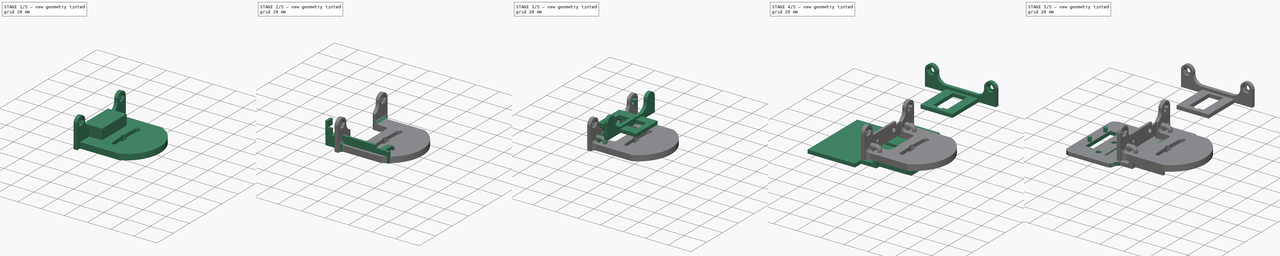
[diagram: build sequence overview — one tinted view per stage of 5, left to right]
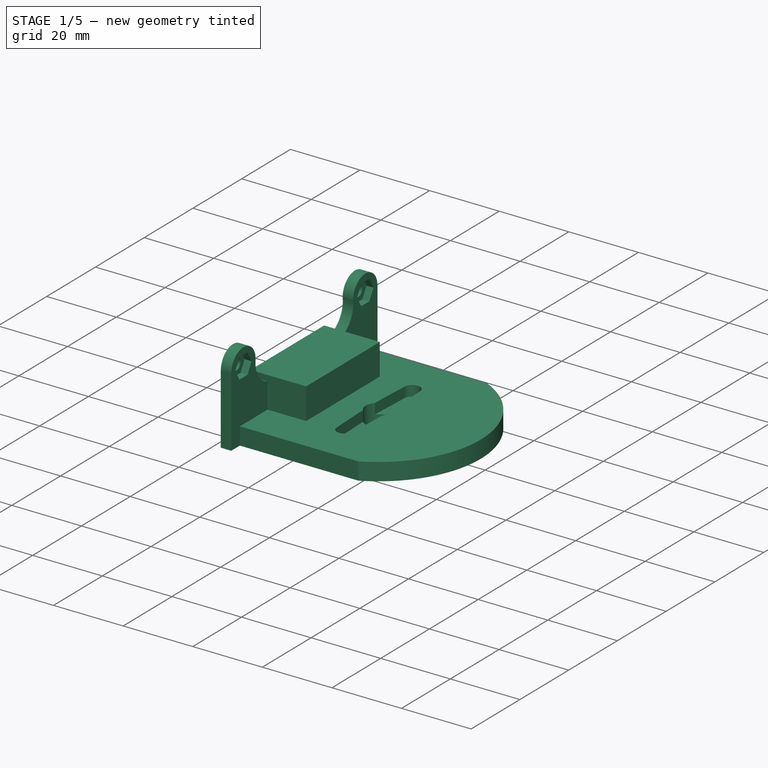
[diagram: stage 1 of 5 — iso view after this stage's code; geometry added in this stage tinted green]
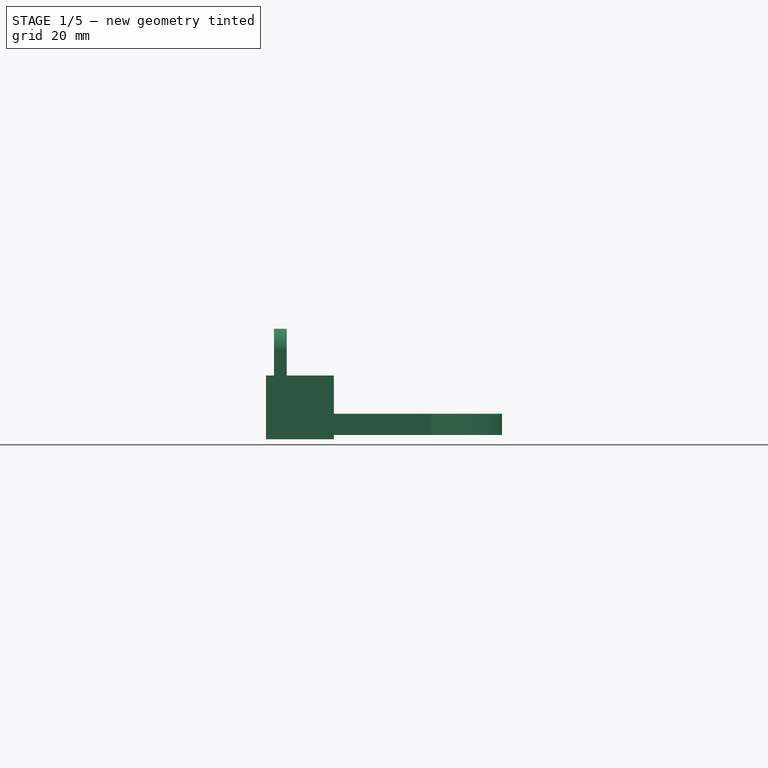
[diagram: stage 1 of 5 — front view after this stage's code; geometry added in this stage tinted green]
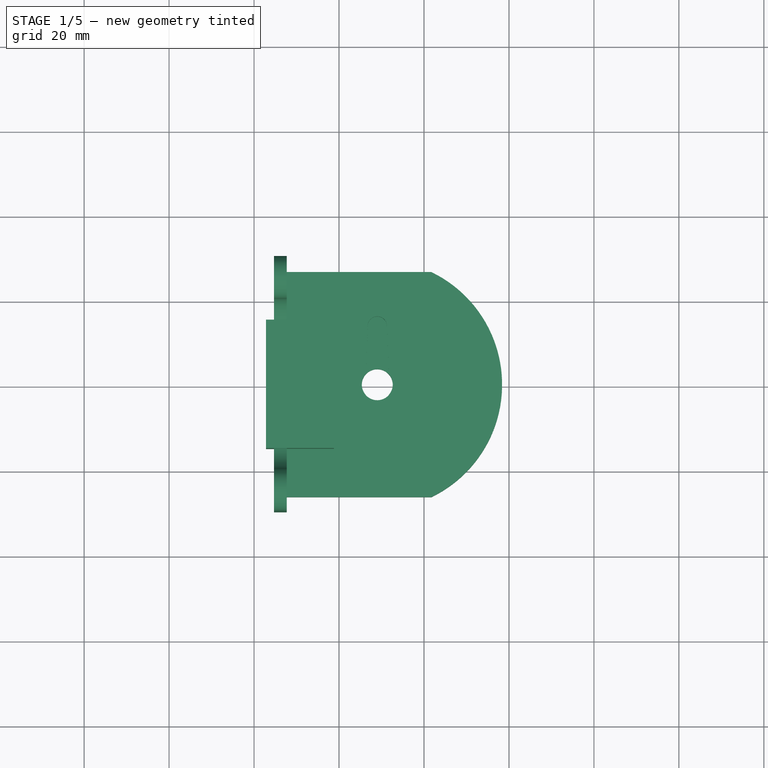
[diagram: stage 1 of 5 — top view after this stage's code; geometry added in this stage tinted green]
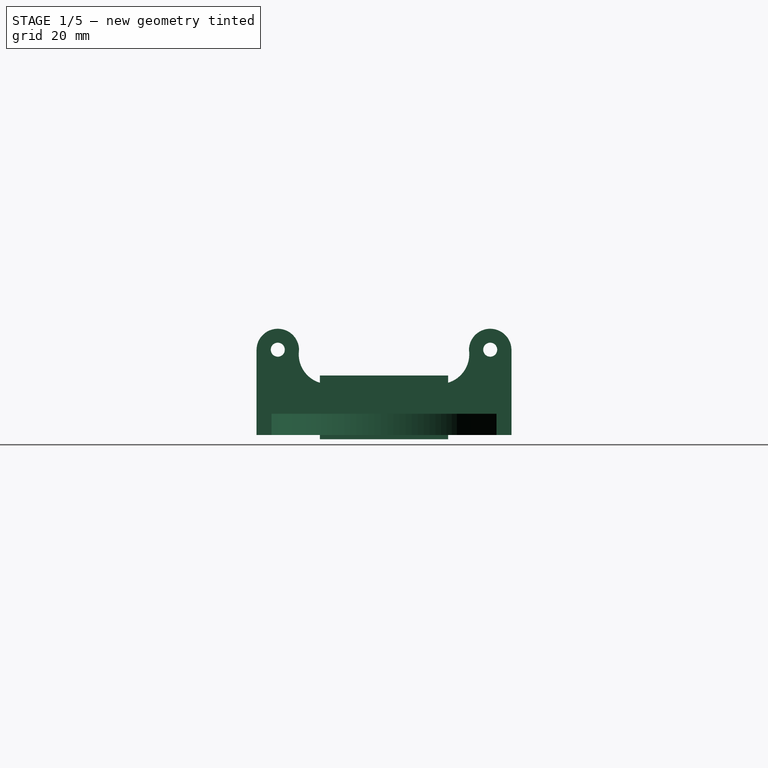
[diagram: stage 1 of 5 — right view after this stage's code; geometry added in this stage tinted green]
FCSTD DOCUMENT  (FreeCAD 0.15R4671 (Git))
Label: piezasExtra
License: CreativeCommons Attribution-ShareAlike
LicenseURL: http://creativecommons.org/licenses/by-sa/4.0/
objects: Part::Box×24, Part::Cut×23, Part::MultiFuse×20, Part::Fillet×18, Part::Cylinder×11, PartDesign::Pad×6, Part::Feature×4, Sketcher::SketchObject×4, App::DocumentObjectGroup×2
note: 116 computed .brp shape members not serialized (recipe doc carries the construction recipe); baked Part::Feature solids carry a one-line shape summary decoded from their .brp

FEATURE [Part::Cut] Cut013  label="AlojaServoV2"
  Placement = pos=(9,0.5,2.05) rot=(0.57735,-0.57735,-0.57735;2.0944rad)
FEATURE [Part::Box] Box019  label="paraPorta"
  Height = 12
  Length = 3
  Placement = pos=(-15.3,-29.5,2.05) rot=(0,0,1;0rad)
  Width = 60
FEATURE [Part::Box] Box020  label="paraBase"
  Height = 5
  Length = 10.1
  Placement = pos=(-12.3,-25.9783,2.05) rot=(0,0,1;0rad)
  Width = 52.9566
FEATURE [Part::Box] Box021  label="paraCorte"
  Height = 20
  Length = 12
  Placement = pos=(-14.2,-29.5,-5.95) rot=(0,0,1;0rad)
  Width = 60
FEATURE [Part::Box] Box022  label="Cubo019"
  Height = 15
  Length = 16
  Placement = pos=(-17.2,-14.607,1.05) rot=(0,0,1;0rad)
  Width = 30.214
FEATURE [Part::Cut] Cut020
  Base = -> Cut013
  Tool = -> Box021
FEATURE [Part::Cylinder] Cylinder009
  Angle = 360
  Height = 15
  Placement = pos=(0,0,0) rot=(-1,0,0;1.5708rad)
  Radius = 1.65
FEATURE [Sketcher::SketchObject] Sketch002
  Placement = pos=(0,0,0) rot=(1,0,0;1.5708rad)
  sketch-geometry (6):
    g0: LineSegment StartX=-3.34863 StartY=0 StartZ=0 EndX=-1.67432 EndY=2.9 EndZ=0
    g1: LineSegment StartX=-1.67432 StartY=2.9 StartZ=0 EndX=1.67432 EndY=2.9 EndZ=0
    g2: LineSegment StartX=1.67432 StartY=2.9 StartZ=0 EndX=3.34863 EndY=0 EndZ=0
    g3: LineSegment StartX=3.34863 StartY=0 StartZ=0 EndX=1.67432 EndY=-2.9 EndZ=0
    g4: LineSegment StartX=1.67432 StartY=-2.9 StartZ=0 EndX=-1.67432 EndY=-2.9 EndZ=0
    g5: LineSegment StartX=-1.67432 StartY=-2.9 StartZ=0 EndX=-3.34863 EndY=0 EndZ=0
  constraints (18):
    c: PointOnObject(g0,g-1)
    c: Coincident(g0,g1)
    c: Horizontal(g1)
    c: Coincident(g1,g2)
    c: Coincident(g2,g3)
    c: Coincident(g3,g4)
    c: Horizontal(g4)
    c: Coincident(g4,g5)
    c: Coincident(g5,g0)
    c: PointOnObject(g2,g-1)
    c: Equal(g1,g0)
    c: Equal(g0,g5)
    c: Equal(g5,g4)
    c: Equal(g4,g3)
    c: Equal(g3,g2)
    c: Angle(g0,g1) = 2.0944
    c: Symmetric(g0,g2,g-2)
    c: DistanceY(g1,g3) = -5.8
FEATURE [PartDesign::Pad] Pad005
  Length = 2.5
  Length2 = 100
  Placement = pos=(0,0,0) rot=(1,0,0;1.5708rad)
  Sketch = -> Sketch002
  Type = 0
FEATURE [Part::Cylinder] Cylinder010
  Angle = 360
  Height = 15
  Placement = pos=(0,0,0) rot=(-1,0,0;1.5708rad)
  Radius = 1.65
FEATURE [Part::MultiFuse] Fusion014  label="TuercaTal020"
  Placement = pos=(1,25,28) rot=(0,0,1;1.5708rad)
  Shapes = -> [Pad005,Cylinder010]
FEATURE [Sketcher::SketchObject] Sketch003
  Placement = pos=(0,0,0) rot=(0.57735,0.57735,0.57735;2.0944rad)
  sketch-geometry (9):
    g0: LineSegment StartX=-30 StartY=14.9253 StartZ=0 EndX=30 EndY=14.9253 EndZ=0
    g1: LineSegment StartX=-30 StartY=27.9253 StartZ=0 EndX=-30 EndY=14.9253 EndZ=0
    g2: LineSegment StartX=30 StartY=27.9253 StartZ=0 EndX=30 EndY=14.9253 EndZ=0
    g3: LineSegment StartX=-13.0351 StartY=19.9253 StartZ=0 EndX=13.0351 EndY=19.9253 EndZ=0
    g4: LineSegment [constr] StartX=-30.3452 StartY=27.9253 StartZ=0 EndX=33.8384 EndY=27.9253 EndZ=0
    g5: ArcOfCircle CenterX=-13.0718 CenterY=26.9252 CenterZ=0 NormalX=0 NormalY=0 NormalZ=1 Radius=7 StartAngle=2.99823 EndAngle=4.71763
    g6: ArcOfCircle CenterX=13.0718 CenterY=26.9252 CenterZ=0 NormalX=0 NormalY=0 NormalZ=1 Radius=7 StartAngle=4.70714 EndAngle=6.42655
    g7: ArcOfCircle CenterX=-25 CenterY=27.9253 CenterZ=0 NormalX=0 NormalY=0 NormalZ=1 Radius=5 StartAngle=0 EndAngle=3.14159
    g8: ArcOfCircle CenterX=25 CenterY=27.9253 CenterZ=0 NormalX=0 NormalY=0 NormalZ=1 Radius=5 StartAngle=0 EndAngle=3.14159
  constraints (27):
    c: Vertical(g1)
    c: Coincident(g0,g1)
    c: Horizontal(g0)
    c: Vertical(g2)
    c: Coincident(g2,g0)
    c: Horizontal(g3)
    c: Symmetric(g5,g6,g-2)
    c: Equal(g5,g6)
    c: Symmetric(g0,g0,g-2)
    c: DistanceX(g0) = 60
    c: Coincident(g3,g5)
    c: Coincident(g3,g6)
    c: Coincident(g7,g5)
    c: Coincident(g7,g1)
    c: PointOnObject(g1,g4)
    c: PointOnObject(g7,g4)
    c: Radius(g7) = 5
    c: Equal(g7,g8)
    c: PointOnObject(g8,g4)
    c: Coincident(g8,g2)
    c: PointOnObject(g2,g4)
    c: Coincident(g6,g8)
    c: PointOnObject(g6,g4)
    c: Horizontal(g4)
    c: DistanceY(g1) = -13
    c: DistanceY(g3,g0) = -5
    c: Radius(g5) = 7
FEATURE [PartDesign::Pad] Pad006
  Length = 3
  Length2 = 100
  Placement = pos=(0,0,0) rot=(0.57735,0.57735,0.57735;2.0944rad)
  Sketch = -> Sketch003
  Type = 0
FEATURE [PartDesign::Pad] Pad007
  Length = 2.5
  Length2 = 100
  Placement = pos=(0,0,0) rot=(1,0,0;1.5708rad)
  Sketch = -> Sketch002
  Type = 0
FEATURE [Part::MultiFuse] Fusion015  label="TuercaTal021"
  Placement = pos=(1,-25,28) rot=(0,0,1;1.5708rad)
  Shapes = -> [Pad007,Cylinder009]
FEATURE [Part::Cut] Cut021
  Base = -> Pad006
  Tool = -> Fusion014
FEATURE [Part::Cut] Cut022  label="preAloBat"
  Base = -> Cut021
  Placement = pos=(-15.3,0.5,-5.8753) rot=(0,0,1;0rad)
  Tool = -> Fusion015
FEATURE [Part::MultiFuse] Fusion016
  Shapes = -> [Box020,Box019]
FEATURE [Part::MultiFuse] Fusion017
  Shapes = -> [Cut022,Fusion016]
FEATURE [Part::Box] Box023  label="Cubo020"
  Height = 5
  Length = 18
  Placement = pos=(14.2668,-6.9783,2.05) rot=(0,0,1;0rad)
  Width = 21
FEATURE [Part::MultiFuse] Fusion018
  Shapes = -> [Box023,Cut020]
FEATURE [Part::MultiFuse] Fusion019
  Shapes = -> [Fusion017,Fusion018]
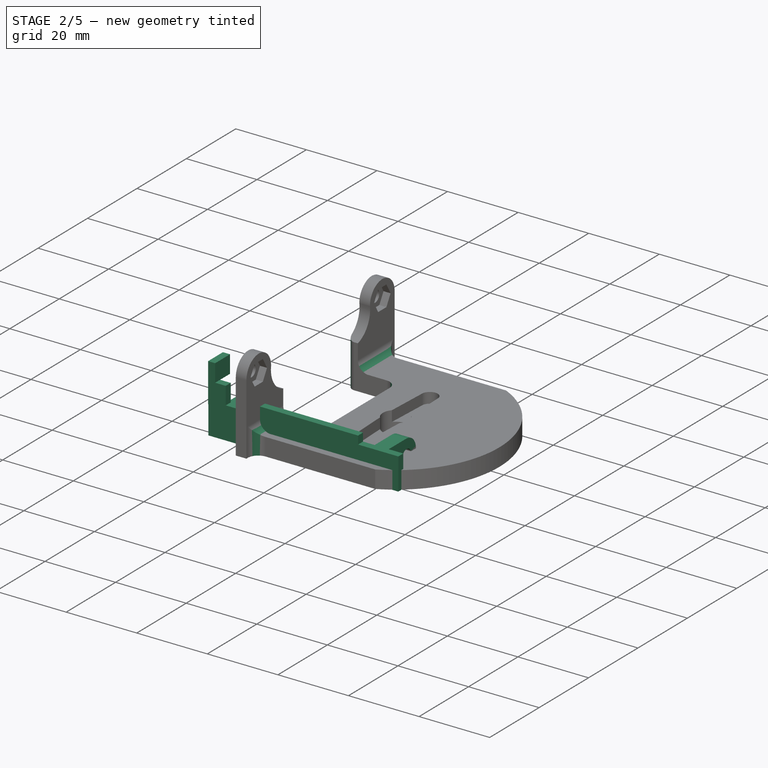
[diagram: stage 2 of 5 — iso view after this stage's code; geometry added in this stage tinted green]
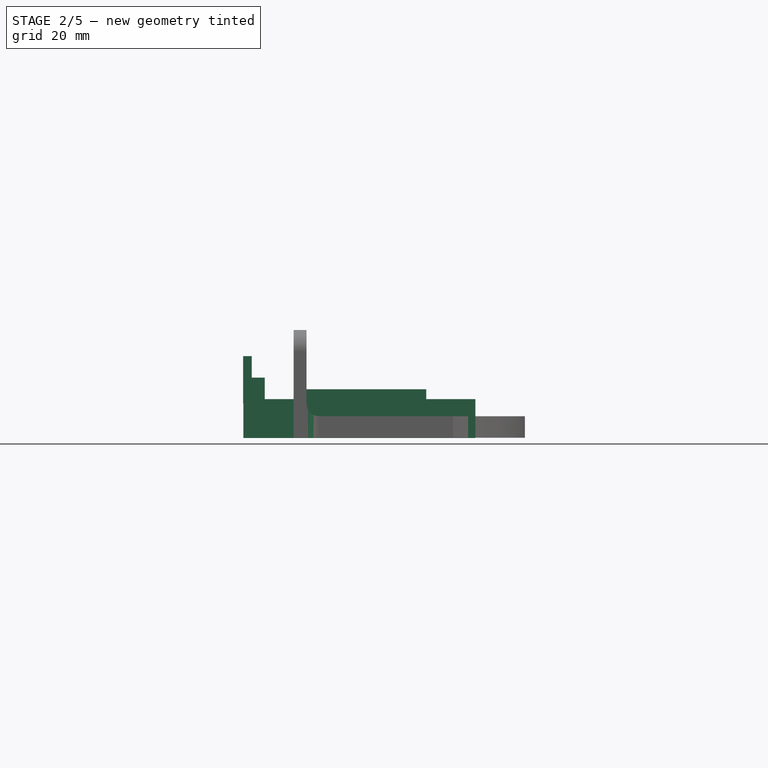
[diagram: stage 2 of 5 — front view after this stage's code; geometry added in this stage tinted green]
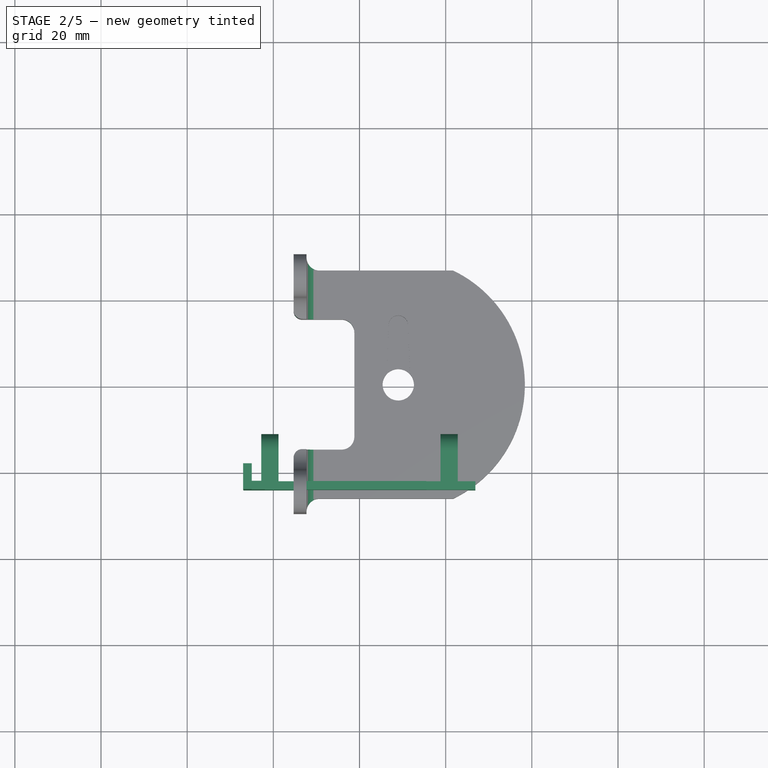
[diagram: stage 2 of 5 — top view after this stage's code; geometry added in this stage tinted green]
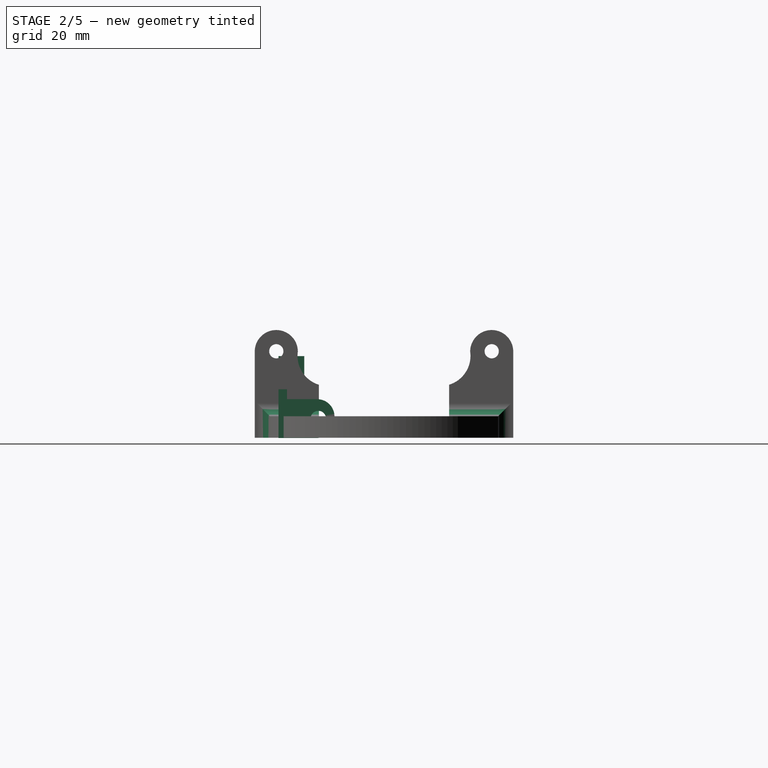
[diagram: stage 2 of 5 — right view after this stage's code; geometry added in this stage tinted green]
FEATURE [Part::Box] Box012  label="Cubo012"
  Height = 9
  Length = 53.848
  Placement = pos=(-26.94,-24,2) rot=(0,0,1;0rad)
  Width = 2
FEATURE [Part::Box] Box013  label="Cubo013"
  Height = 9
  Length = 4
  Placement = pos=(18.7926,-24,1.5) rot=(0,0,1;0rad)
  Width = 13
FEATURE [Part::Box] Box014  label="Cubo014"
  Height = 9
  Length = 4
  Placement = pos=(-22.7927,-24,1.5) rot=(0,0,1;0rad)
  Width = 13
FEATURE [Part::Fillet] Fillet005
  Base = -> Box013
  Edges = 2 edges r=4: [Edge11,Edge12]
  Placement = pos=(0,0,0.5) rot=(0,0,1;0rad)
FEATURE [Part::Fillet] Fillet006
  Base = -> Box014
  Edges = 2 edges r=4: [Edge11,Edge12]
  Placement = pos=(0,0,0.5) rot=(0,0,1;0rad)
FEATURE [Part::MultiFuse] Fusion008  label="TuercaTal018"
  Placement = pos=(24.3,-14.75,6.5) rot=(0,0,1;1.5708rad)
FEATURE [Part::MultiFuse] Fusion009  label="TuercaTal019"
  Placement = pos=(-17.4,-14.75,6.5) rot=(0,0,1;1.5708rad)
FEATURE [Part::Cut] Cut014
  Base = -> Fillet005
  Tool = -> Fusion008
FEATURE [Part::Cut] Cut015
  Base = -> Fillet006
  Tool = -> Fusion009
FEATURE [Part::Box] Box015  label="Cubo015"
  Height = 11
  Length = 2
  Placement = pos=(-27,-24,10) rot=(0,0,1;0rad)
  Width = 6
FEATURE [Part::Box] Box016  label="Cubo016"
  Height = 5
  Length = 5
  Placement = pos=(-27,-24,11) rot=(0,0,1;0rad)
  Width = 2
FEATURE [Part::Box] Box017  label="Cubo017"
  Height = 7
  Length = 6
  Placement = pos=(-27,-22,9) rot=(0,0,1;0rad)
  Width = 6
FEATURE [Part::Cut] Cut016
  Base = -> Box015
  Tool = -> Box017
FEATURE [Part::MultiFuse] Fusion010
  Shapes = -> [Cut016,Box016]
FEATURE [Part::MultiFuse] Fusion011
  Shapes = -> [Box012,Fusion010]
FEATURE [Part::Box] Box018  label="Cubo018"
  Height = 3
  Length = 28
  Placement = pos=(-12.5,-24,10.3) rot=(0,0,1;0rad)
  Width = 2
FEATURE [Part::Cut] Cut023
  Base = -> Fusion019
  Tool = -> Box022
FEATURE [Part::Fillet] Fillet014
  Base = -> Cut023
  Edges = 2 edges r=3: [Edge6,Edge74]
FEATURE [Part::Fillet] Fillet015
  Base = -> Fillet014
  Edges = 2 edges r=3: [Edge6,Edge49]
FEATURE [Part::Fillet] Fillet016
  Base = -> Fillet015
  Edges = 2 edges r=3: [Edge20,Edge78]
FEATURE [Part::Fillet] Fillet017
  Base = -> Fillet016
  Edges = 2 edges r=2: [Edge6,Edge76]
FEATURE [App::DocumentObjectGroup] Grupo001  label="GR_portaUltrasonidosBAT"
  Group = -> [Fusion007,Fusion013,Fillet017]
FEATURE [Part::Feature] Fillet018  label="csForBat"
  Placement = pos=(-63,-36,-25) rot=(0,0,1;0rad)
  shape: bbox 53.68 x 60 x 25 mm, 53 faces (baked)
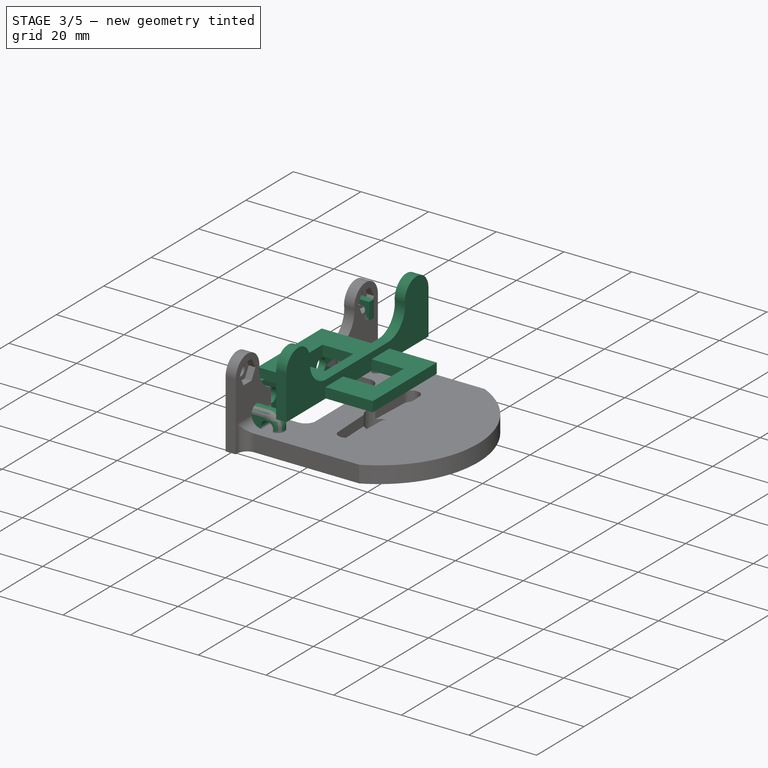
[diagram: stage 3 of 5 — iso view after this stage's code; geometry added in this stage tinted green]
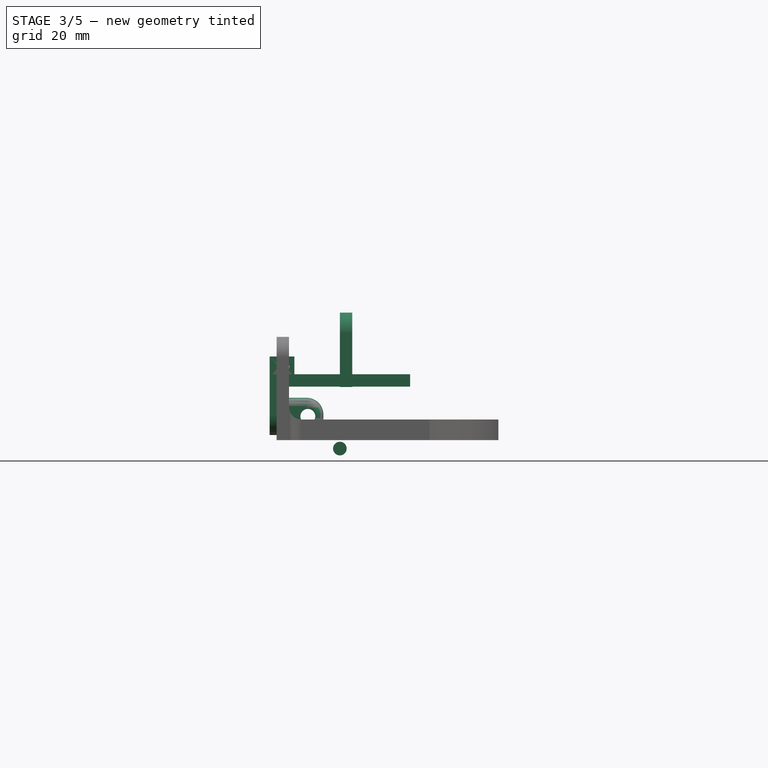
[diagram: stage 3 of 5 — front view after this stage's code; geometry added in this stage tinted green]
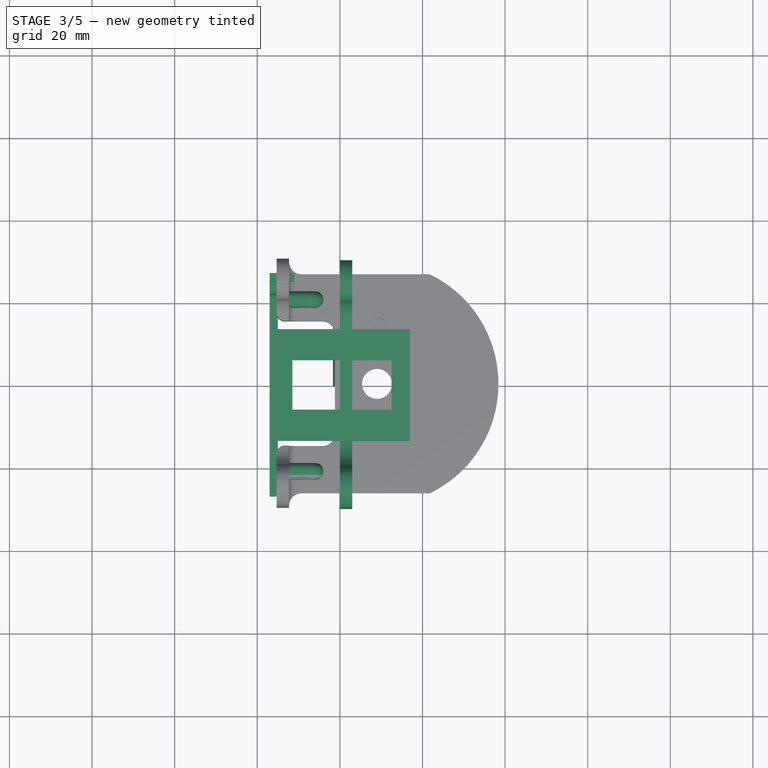
[diagram: stage 3 of 5 — top view after this stage's code; geometry added in this stage tinted green]
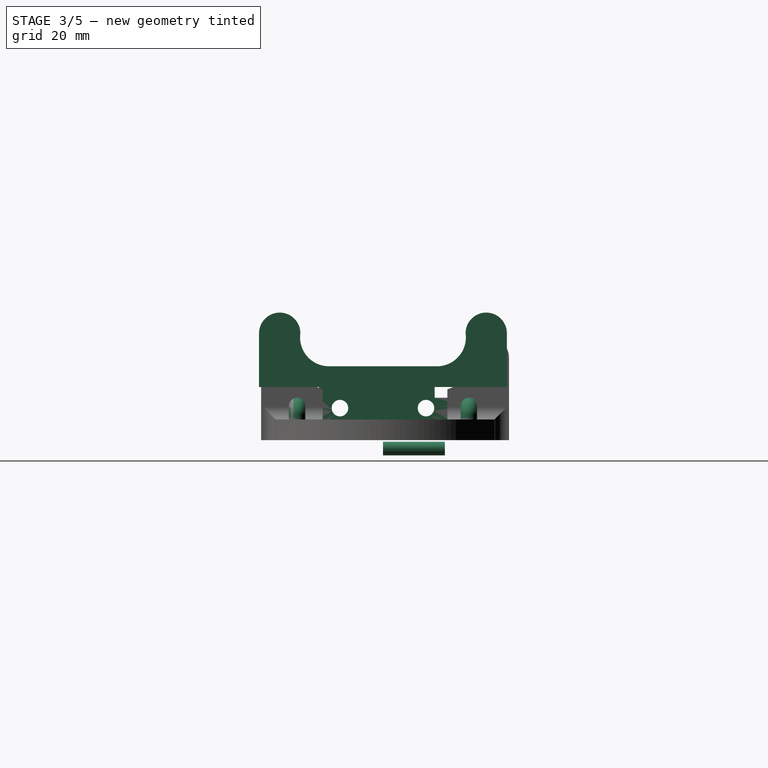
[diagram: stage 3 of 5 — right view after this stage's code; geometry added in this stage tinted green]
FEATURE [Part::Cylinder] Cylinder005
  Angle = 360
  Height = 15
  Placement = pos=(0,0,0) rot=(-1,0,0;1.5708rad)
  Radius = 1.65
FEATURE [Sketcher::SketchObject] Sketch001
  Placement = pos=(0,0,0) rot=(0.57735,0.57735,0.57735;2.0944rad)
  sketch-geometry (9):
    g0: LineSegment StartX=-30 StartY=14.9253 StartZ=0 EndX=30 EndY=14.9253 EndZ=0
    g1: LineSegment StartX=-30 StartY=27.9253 StartZ=0 EndX=-30 EndY=14.9253 EndZ=0
    g2: LineSegment StartX=30 StartY=27.9253 StartZ=0 EndX=30 EndY=14.9253 EndZ=0
    g3: LineSegment StartX=-13.0351 StartY=19.9253 StartZ=0 EndX=13.0351 EndY=19.9253 EndZ=0
    g4: LineSegment [constr] StartX=-30.3452 StartY=27.9253 StartZ=0 EndX=33.8384 EndY=27.9253 EndZ=0
    g5: ArcOfCircle CenterX=-13.0718 CenterY=26.9252 CenterZ=0 NormalX=0 NormalY=0 NormalZ=1 Radius=7 StartAngle=2.99823 EndAngle=4.71763
    g6: ArcOfCircle CenterX=13.0718 CenterY=26.9252 CenterZ=0 NormalX=0 NormalY=0 NormalZ=1 Radius=7 StartAngle=4.70714 EndAngle=6.42655
    g7: ArcOfCircle CenterX=-25 CenterY=27.9253 CenterZ=0 NormalX=0 NormalY=0 NormalZ=1 Radius=5 StartAngle=0 EndAngle=3.14159
    g8: ArcOfCircle CenterX=25 CenterY=27.9253 CenterZ=0 NormalX=0 NormalY=0 NormalZ=1 Radius=5 StartAngle=0 EndAngle=3.14159
  constraints (27):
    c: Vertical(g1)
    c: Coincident(g0,g1)
    c: Horizontal(g0)
    c: Vertical(g2)
    c: Coincident(g2,g0)
    c: Horizontal(g3)
    c: Symmetric(g5,g6,g-2)
    c: Equal(g5,g6)
    c: Symmetric(g0,g0,g-2)
    c: DistanceX(g0) = 60
    c: Coincident(g3,g5)
    c: Coincident(g3,g6)
    c: Coincident(g7,g5)
    c: Coincident(g7,g1)
    c: PointOnObject(g1,g4)
    c: PointOnObject(g7,g4)
    c: Radius(g7) = 5
    c: Equal(g7,g8)
    c: PointOnObject(g8,g4)
    c: Coincident(g8,g2)
    c: PointOnObject(g2,g4)
    c: Coincident(g6,g8)
    c: PointOnObject(g6,g4)
    c: Horizontal(g4)
    c: DistanceY(g1) = -13
    c: DistanceY(g3,g0) = -5
    c: Radius(g5) = 7
FEATURE [PartDesign::Pad] Pad003
  Length = 3
  Length2 = 100
  Placement = pos=(0,0,0) rot=(0.57735,0.57735,0.57735;2.0944rad)
  Sketch = -> Sketch001
  Type = 0
FEATURE [Part::Box] Box010  label="Cubo010"
  Height = 3
  Length = 34
  Placement = pos=(-17,-13.5,15) rot=(0,0,1;0rad)
  Width = 27
FEATURE [Part::Box] Box011  label="Cubo011"
  Height = 10
  Length = 24
  Placement = pos=(-11.5,-6,11) rot=(0,0,1;0rad)
  Width = 12
FEATURE [Part::Cut] Cut012
  Base = -> Box010
  Tool = -> Box011
FEATURE [Part::MultiFuse] Fusion012
  Shapes = -> [Fusion011,Cut014,Cut015]
FEATURE [Part::Fillet] Fillet007
  Base = -> Fusion012
  Edges = 2 edges r=2: [Edge48,Edge67]
FEATURE [Part::Fillet] Fillet008
  Base = -> Fillet007
  Edges = 1 edges r=1.9: [Edge16]
FEATURE [Part::Cylinder] Cylinder006  label="Cilindro002"
  Angle = 360
  Height = 10
  Placement = pos=(-10.414,-16.1,8.49693) rot=(1,0,0;1.5708rad)
  Radius = 2
FEATURE [Part::Cylinder] Cylinder007  label="Cilindro003"
  Angle = 360
  Height = 10
  Placement = pos=(10.414,-16.1,8.49693) rot=(1,0,0;1.5708rad)
  Radius = 2
FEATURE [Part::Cylinder] Cylinder008  label="Cilindro004"
  Angle = 360
  Height = 10
  Placement = pos=(-31,-20.5,18.5) rot=(0,1,0;1.5708rad)
  Radius = 1.25
FEATURE [Part::Fillet] Fillet009
  Base = -> Fillet008
  Edges = 5 edges r=2: [Edge23,Edge66,Edge67,Edge68,Edge69]
FEATURE [Part::Fillet] Fillet010
  Base = -> Fillet009
  Edges = 5 edges r=1.95: [Edge3,Edge21,Edge25,Edge26,Edge27]
FEATURE [Part::Cut] Cut017
  Base = -> Fillet010
  Tool = -> Cylinder008
FEATURE [Part::Cut] Cut018
  Base = -> Cut017
  Tool = -> Cylinder007
FEATURE [Part::Cut] Cut019
  Base = -> Cut018
  Tool = -> Cylinder006
FEATURE [Part::Fillet] Fillet011
  Base = -> Cut019
  Edges = 1 edges r=2: [Edge83]
FEATURE [Part::Fillet] Fillet012
  Base = -> Fillet011
  Edges = 1 edges r=2: [Edge33]
FEATURE [Part::Fillet] Fillet013  label="prePortaCam1"
  Base = -> Fillet012
  Edges = 2 edges r=5: [Edge55,Edge67]
  Placement = pos=(0,0,-0.7) rot=(0,0,1;0rad)
FEATURE [Part::MultiFuse] Fusion013  label="prePortaCam"
  Placement = pos=(7,0,2) rot=(0,0,-1;1.5708rad)
  Shapes = -> [Fillet013,Box018]
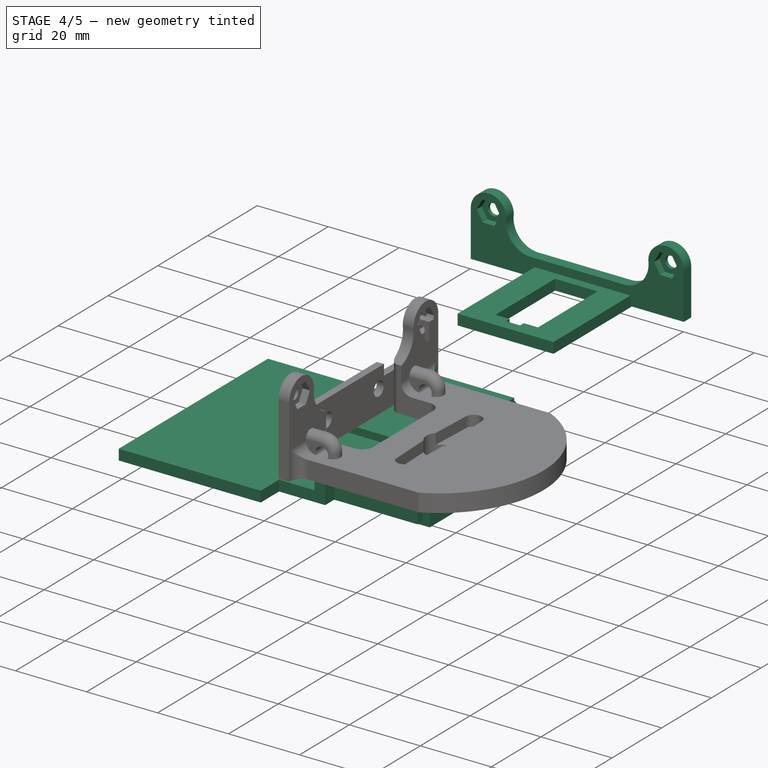
[diagram: stage 4 of 5 — iso view after this stage's code; geometry added in this stage tinted green]
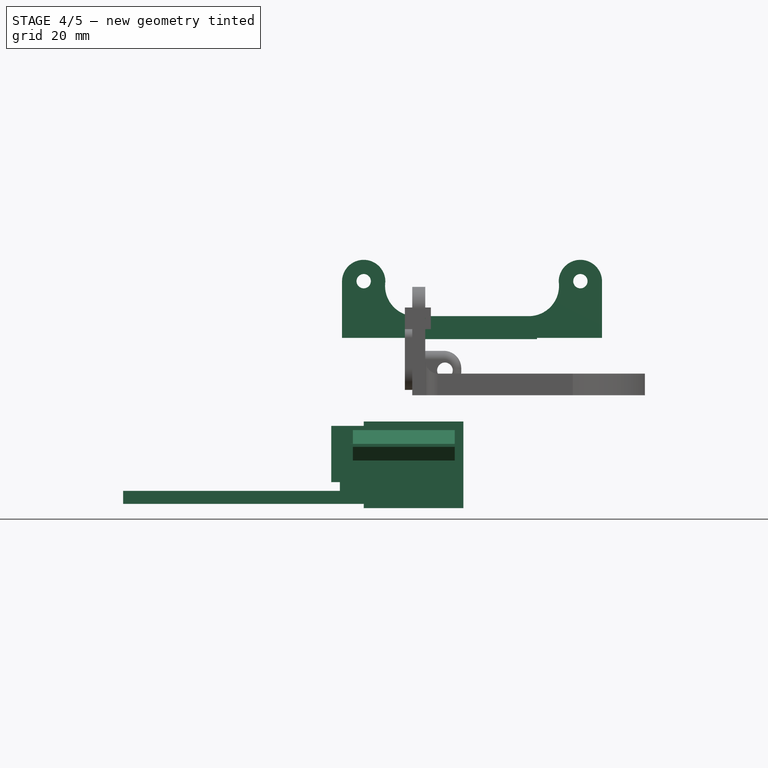
[diagram: stage 4 of 5 — front view after this stage's code; geometry added in this stage tinted green]
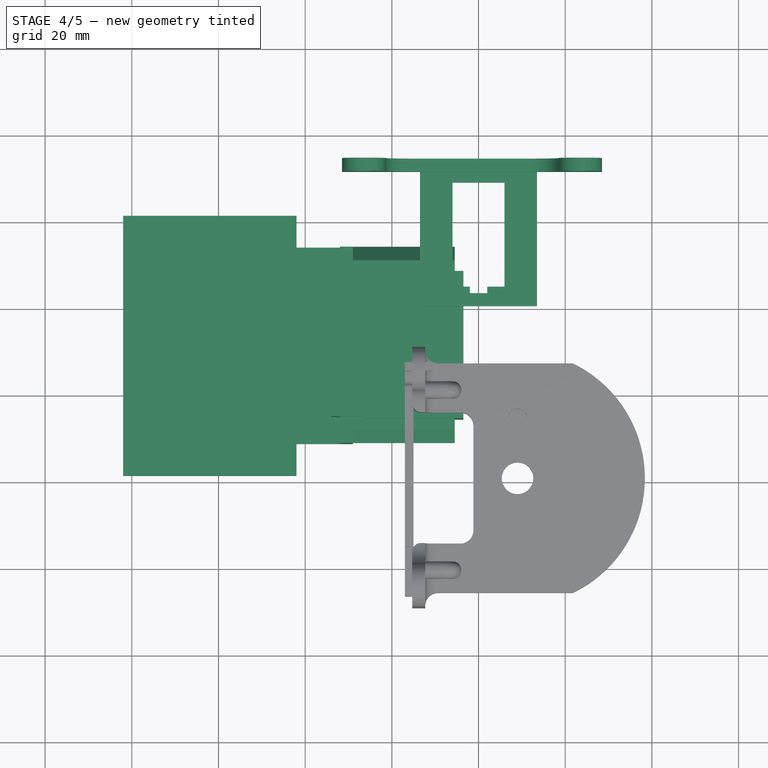
[diagram: stage 4 of 5 — top view after this stage's code; geometry added in this stage tinted green]
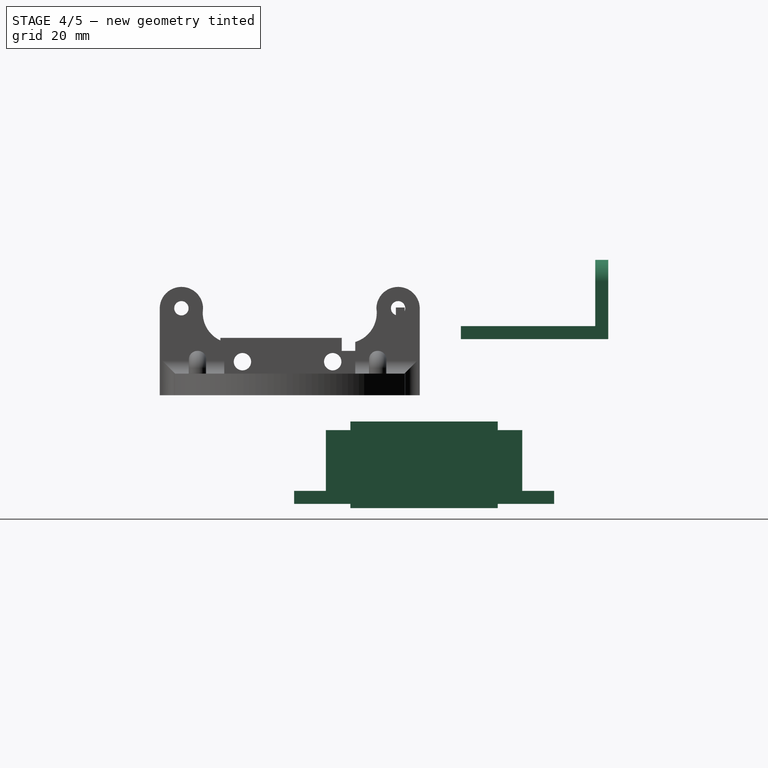
[diagram: stage 4 of 5 — right view after this stage's code; geometry added in this stage tinted green]
FEATURE [Part::Feature] Pad
  Placement = pos=(-30.05,-0.115984,0.0102208) rot=(0.57735,0.57735,0.57735;2.0944rad)
  shape: bbox 25 x 12 x 7 mm, 8 faces (baked)
FEATURE [Part::Feature] Pad001
  Placement = pos=(-30.05,63.116,-19.0102) rot=(0.57735,-0.57735,0.57735;4.18879rad)
  shape: bbox 25 x 12 x 7 mm, 8 faces (baked)
FEATURE [Part::Box] Box  label="Cubo"
  Height = 7
  Length = 24
  Placement = pos=(-29.5,8,-13) rot=(0,0,1;0rad)
  Width = 47
FEATURE [Part::Cut] Cut
  Base = -> Box
  Tool = -> Pad001
FEATURE [Part::Cut] Cut001
  Base = -> Cut
  Tool = -> Pad
FEATURE [Part::Box] Box001  label="Cubo001"
  Height = 20
  Length = 23
  Placement = pos=(-26.5,14.5,-24) rot=(0,0,1;0rad)
  Width = 34
FEATURE [Part::Box] Box002  label="Cubo002"
  Height = 17
  Length = 24
  Placement = pos=(-29.5,12.5,-23) rot=(0,0,1;0rad)
  Width = 38
FEATURE [Part::MultiFuse] Fusion
  Shapes = -> [Box002,Cut001]
FEATURE [Part::Box] Box003  label="Cubo003"
  Height = 17
  Length = 3
  Placement = pos=(-32,8.85,-23) rot=(0,0,1;0rad)
  Width = 45.3
FEATURE [Part::Box] Box004  label="Cubo004"
  Height = 13
  Length = 10
  Placement = pos=(-34,15,-18) rot=(0,0,1;0rad)
  Width = 33
FEATURE [Part::Box] Box005  label="Cubo005"
  Height = 3
  Length = 40
  Placement = pos=(-82,1.5,-23) rot=(0,0,1;0rad)
  Width = 60
FEATURE [Part::Box] Box006  label="Cubo006"
  Height = 3
  Length = 25
  Placement = pos=(-57,8.85,-23) rot=(0,0,1;0rad)
  Width = 45.3
FEATURE [Part::MultiFuse] Fusion002
  Shapes = -> [Box006,Box005]
FEATURE [App::DocumentObjectGroup] Grupo  label="GR_portaSensorIR"
  Group = -> [Cut007]
FEATURE [Part::Feature] Cut008  label="csPortaSensorIR"
  shape: bbox 76.5 x 60 x 17.18 mm, 62 faces (baked)
FEATURE [Part::Cylinder] Cylinder004
  Angle = 360
  Height = 15
  Placement = pos=(0,0,0) rot=(-1,0,0;1.5708rad)
  Radius = 1.65
FEATURE [Sketcher::SketchObject] Sketch
  Placement = pos=(0,0,0) rot=(1,0,0;1.5708rad)
  sketch-geometry (6):
    g0: LineSegment StartX=-3.34863 StartY=0 StartZ=0 EndX=-1.67432 EndY=2.9 EndZ=0
    g1: LineSegment StartX=-1.67432 StartY=2.9 StartZ=0 EndX=1.67432 EndY=2.9 EndZ=0
    g2: LineSegment StartX=1.67432 StartY=2.9 StartZ=0 EndX=3.34863 EndY=0 EndZ=0
    g3: LineSegment StartX=3.34863 StartY=0 StartZ=0 EndX=1.67432 EndY=-2.9 EndZ=0
    g4: LineSegment StartX=1.67432 StartY=-2.9 StartZ=0 EndX=-1.67432 EndY=-2.9 EndZ=0
    g5: LineSegment StartX=-1.67432 StartY=-2.9 StartZ=0 EndX=-3.34863 EndY=0 EndZ=0
  constraints (18):
    c: PointOnObject(g0,g-1)
    c: Coincident(g0,g1)
    c: Horizontal(g1)
    c: Coincident(g1,g2)
    c: Coincident(g2,g3)
    c: Coincident(g3,g4)
    c: Horizontal(g4)
    c: Coincident(g4,g5)
    c: Coincident(g5,g0)
    c: PointOnObject(g2,g-1)
    c: Equal(g1,g0)
    c: Equal(g0,g5)
    c: Equal(g5,g4)
    c: Equal(g4,g3)
    c: Equal(g3,g2)
    c: Angle(g0,g1) = 2.0944
    c: Symmetric(g0,g2,g-2)
    c: DistanceY(g1,g3) = -5.8
FEATURE [PartDesign::Pad] Pad002
  Length = 2.5
  Length2 = 100
  Placement = pos=(0,0,0) rot=(1,0,0;1.5708rad)
  Sketch = -> Sketch
  Type = 0
FEATURE [Part::MultiFuse] Fusion005  label="TuercaTal005"
  Placement = pos=(1,25,28) rot=(0,0,1;1.5708rad)
  Shapes = -> [Pad002,Cylinder005]
FEATURE [Part::Box] Box009  label="Cubo009"
  Height = 10
  Length = 4
  Placement = pos=(10,-2,10) rot=(0,0,1;0rad)
  Width = 4
FEATURE [PartDesign::Pad] Pad004
  Length = 2.5
  Length2 = 100
  Placement = pos=(0,0,0) rot=(1,0,0;1.5708rad)
  Sketch = -> Sketch
  Type = 0
FEATURE [Part::MultiFuse] Fusion006  label="TuercaTal006"
  Placement = pos=(1,-25,28) rot=(0,0,1;1.5708rad)
  Shapes = -> [Pad004,Cylinder004]
FEATURE [Part::Cut] Cut010
  Base = -> Pad003
  Tool = -> Fusion005
FEATURE [Part::Cut] Cut011
  Base = -> Cut010
  Placement = pos=(-17,-1.5,0.374699) rot=(0,0,1;0rad)
  Tool = -> Fusion006
FEATURE [Part::Cut] Cut009  label="Cut024"
  Base = -> Cut012
  Tool = -> Box009
FEATURE [Part::MultiFuse] Fusion007  label="PortaBAT"
  Placement = pos=(0,57,0) rot=(0,0,-1;1.5708rad)
  Shapes = -> [Cut009,Cut011]
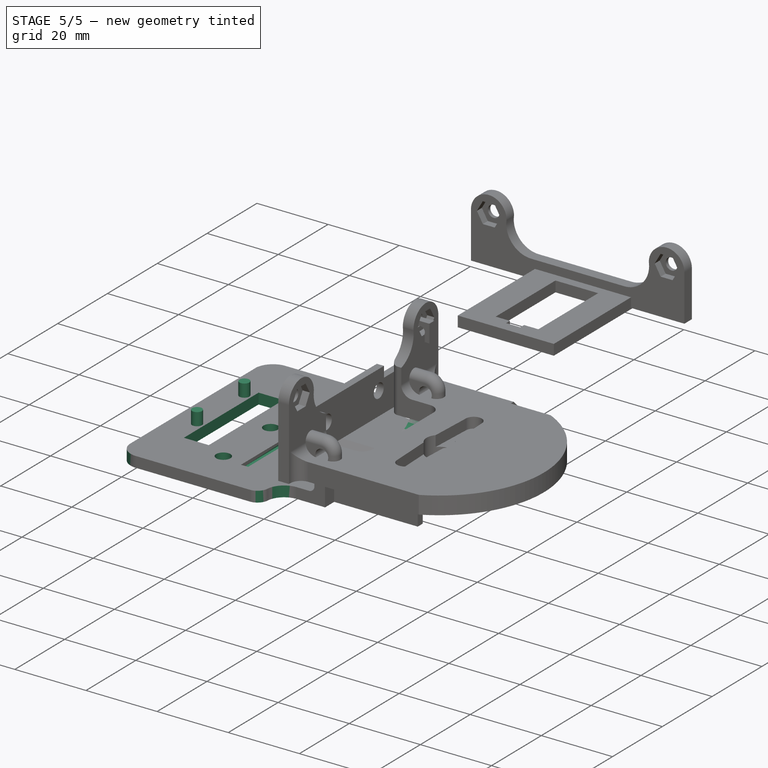
[diagram: stage 5 of 5 — iso view after this stage's code; geometry added in this stage tinted green]
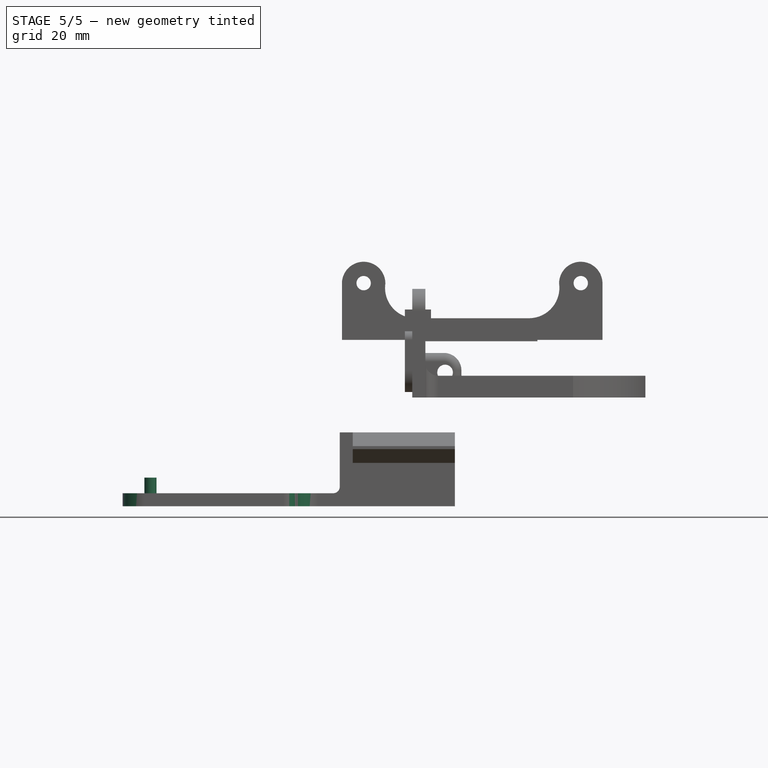
[diagram: stage 5 of 5 — front view after this stage's code; geometry added in this stage tinted green]
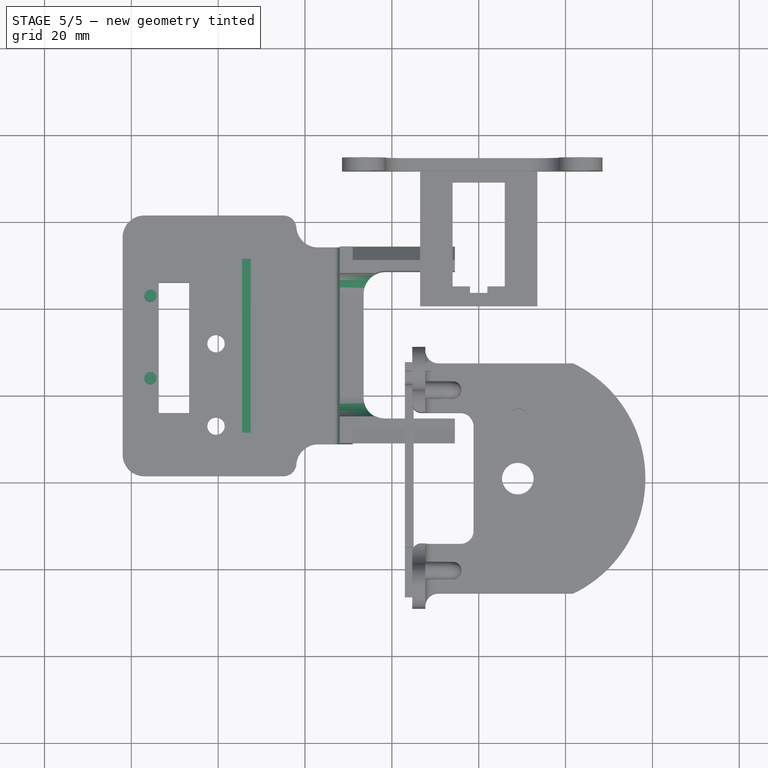
[diagram: stage 5 of 5 — top view after this stage's code; geometry added in this stage tinted green]
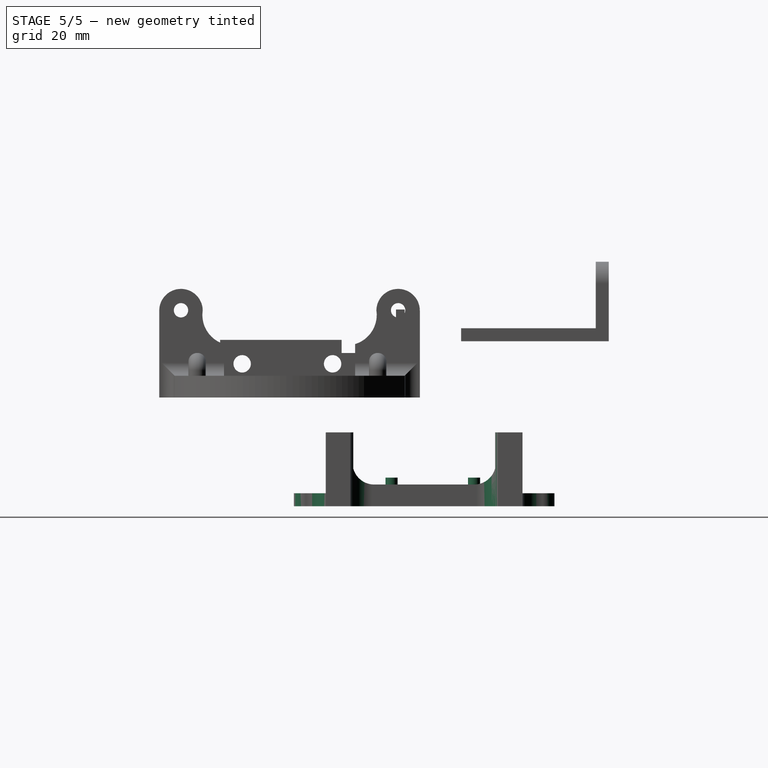
[diagram: stage 5 of 5 — right view after this stage's code; geometry added in this stage tinted green]
FEATURE [Part::Cut] Cut002
  Base = -> Fusion
  Tool = -> Box001
FEATURE [Part::Fillet] Fillet
  Base = -> Cut002
  Edges = 2 edges r=5: [Edge20,Edge21]
FEATURE [Part::MultiFuse] Fusion001
  Shapes = -> [Fillet,Box003]
FEATURE [Part::Box] Box007  label="Cubo007"
  Height = 10
  Length = 7
  Placement = pos=(-73.7,16,-25) rot=(0,0,1;0rad)
  Width = 30
FEATURE [Part::Cylinder] Cylinder  label="Cilindro001"
  Angle = 360
  Height = 3.6
  Placement = pos=(-75.6,24,-20) rot=(0,0,1;0rad)
  Radius = 1.4
FEATURE [Part::Cylinder] Cylinder001  label="Cilindro"
  Angle = 360
  Height = 3.6
  Placement = pos=(-75.6,43,-20) rot=(0,0,1;0rad)
  Radius = 1.4
FEATURE [Part::Cylinder] Cylinder002  label="Taladro"
  Angle = 360
  Height = 9
  Placement = pos=(-60.5,13,-24.9) rot=(0,0,1;0rad)
  Radius = 2
FEATURE [Part::Cylinder] Cylinder003  label="Taladro001"
  Angle = 360
  Height = 9
  Placement = pos=(-60.5,32,-24.9) rot=(0,0,1;0rad)
  Radius = 2
FEATURE [Part::Cut] Cut003
  Base = -> Fusion001
  Tool = -> Box004
FEATURE [Part::MultiFuse] Fusion003
  Shapes = -> [Cut003,Fusion002]
FEATURE [Part::Fillet] Fillet001
  Base = -> Fusion003
  Edges = 4 edges r=5: [Edge95,Edge97,Edge98,Edge100]
FEATURE [Part::Fillet] Fillet002
  Base = -> Fillet001
  Edges = 2 edges r=3: [Edge31,Edge48]
FEATURE [Part::Fillet] Fillet003
  Base = -> Fillet002
  Edges = 1 edges r=1.5: [Edge5]
FEATURE [Part::Fillet] Fillet004
  Base = -> Fillet003
  Edges = 2 edges r=5: [Edge109,Edge116]
FEATURE [Part::Box] Box008  label="Cubo008"
  Height = 10
  Length = 2
  Placement = pos=(-54.5,11.5,-21) rot=(0,0,1;0rad)
  Width = 40
FEATURE [Part::MultiFuse] Fusion004
  Shapes = -> [Cylinder001,Cylinder,Fillet004]
FEATURE [Part::Cut] Cut004
  Base = -> Fusion004
  Tool = -> Box007
FEATURE [Part::Cut] Cut005
  Base = -> Cut004
  Tool = -> Cylinder002
FEATURE [Part::Cut] Cut006
  Base = -> Cut005
  Tool = -> Cylinder003
FEATURE [Part::Cut] Cut007  label="PortaSensorIR"
  Base = -> Cut006
  Tool = -> Box008
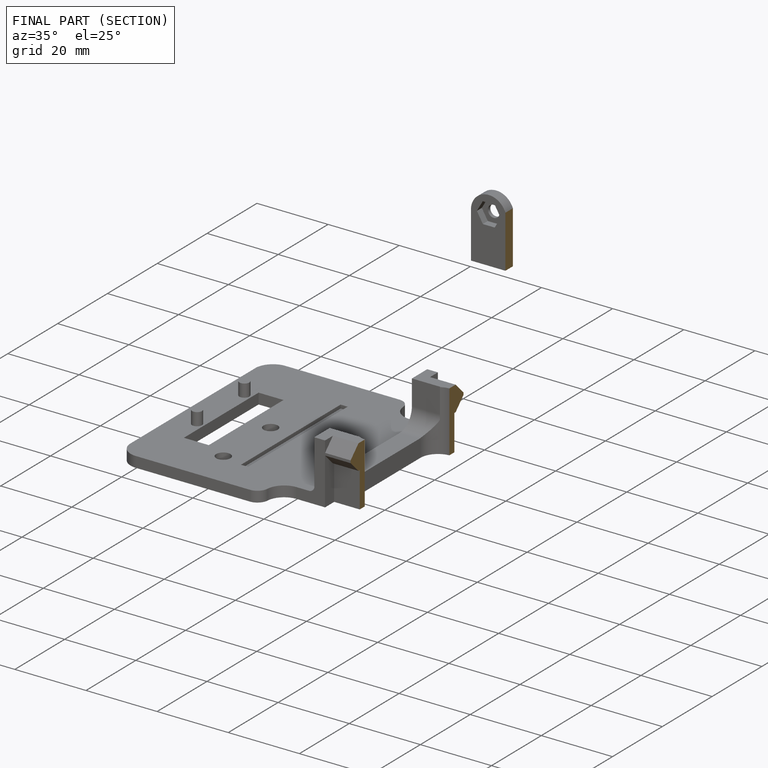
[diagram: finished part — half-section view (interior)]
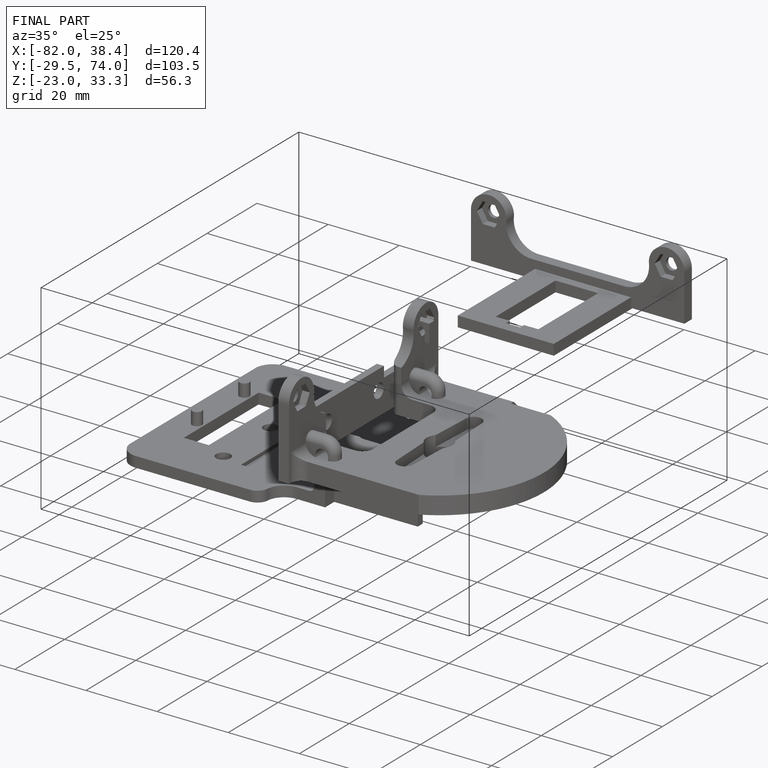
[diagram: finished part — iso view with bounding-box wireframe]
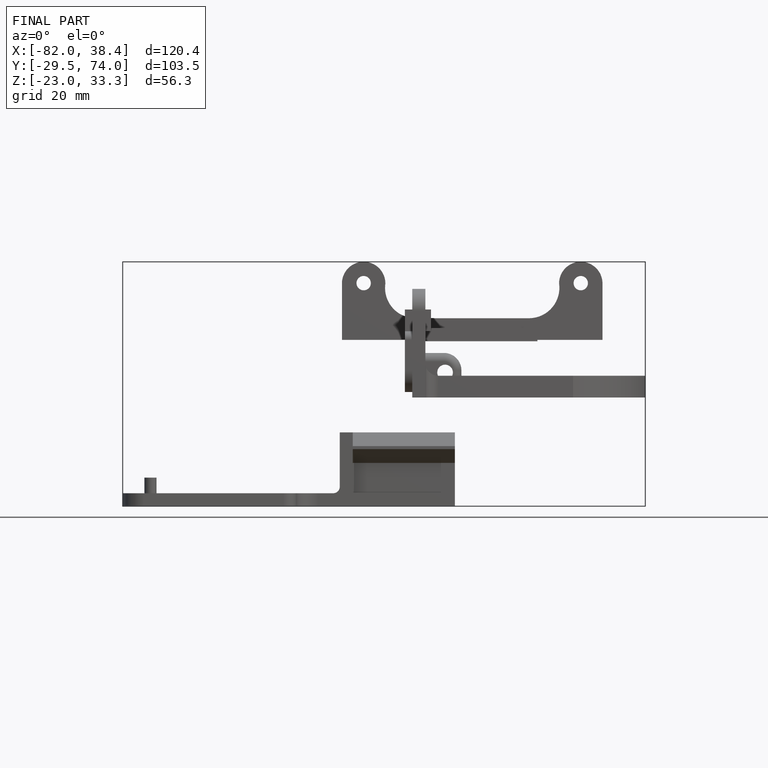
[diagram: finished part — front view with bounding-box wireframe]
